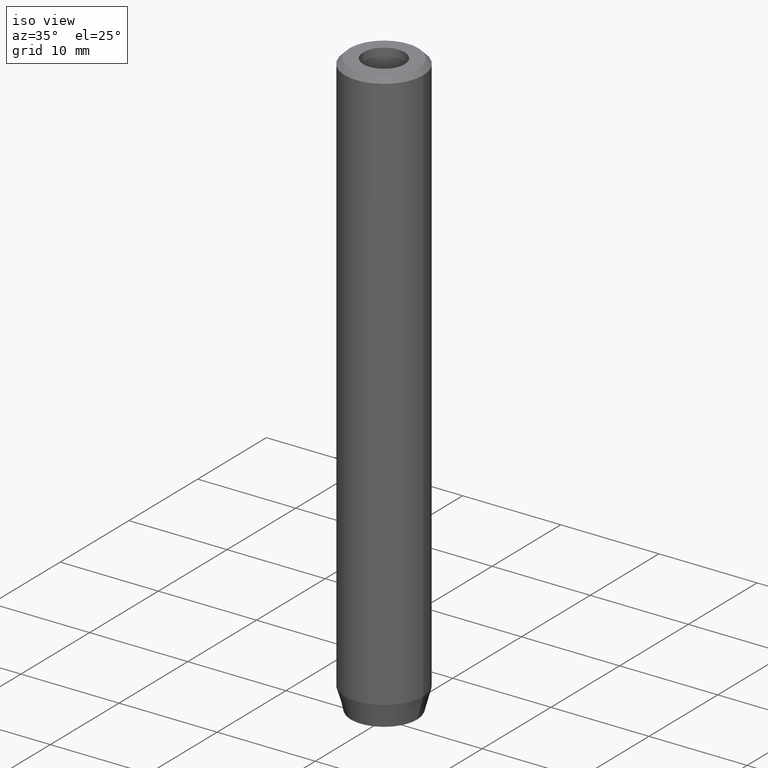
[diagram: clean part render]
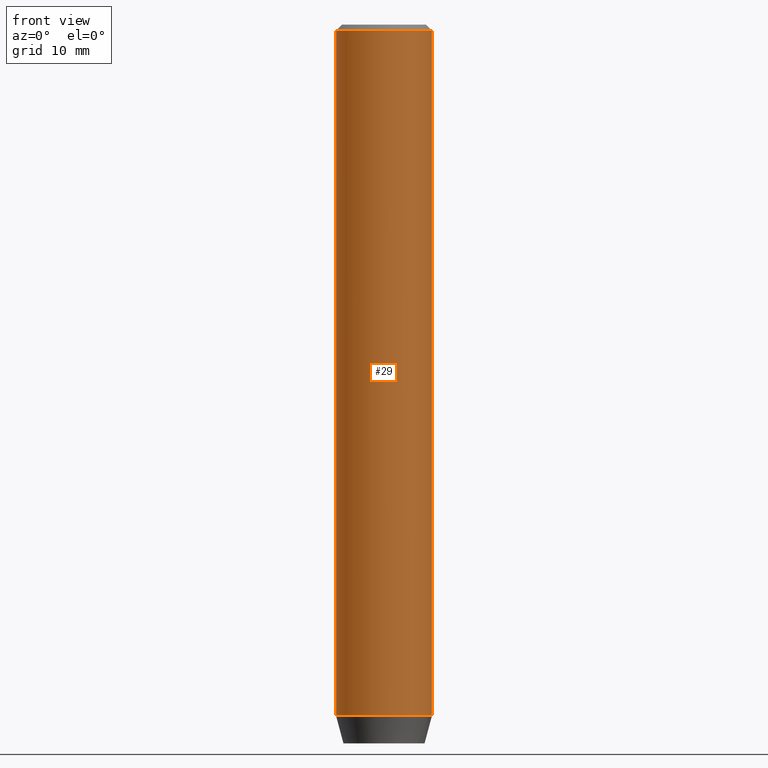
[diagram: tour spotlight — one face highlighted and labeled with its STEP entity id]
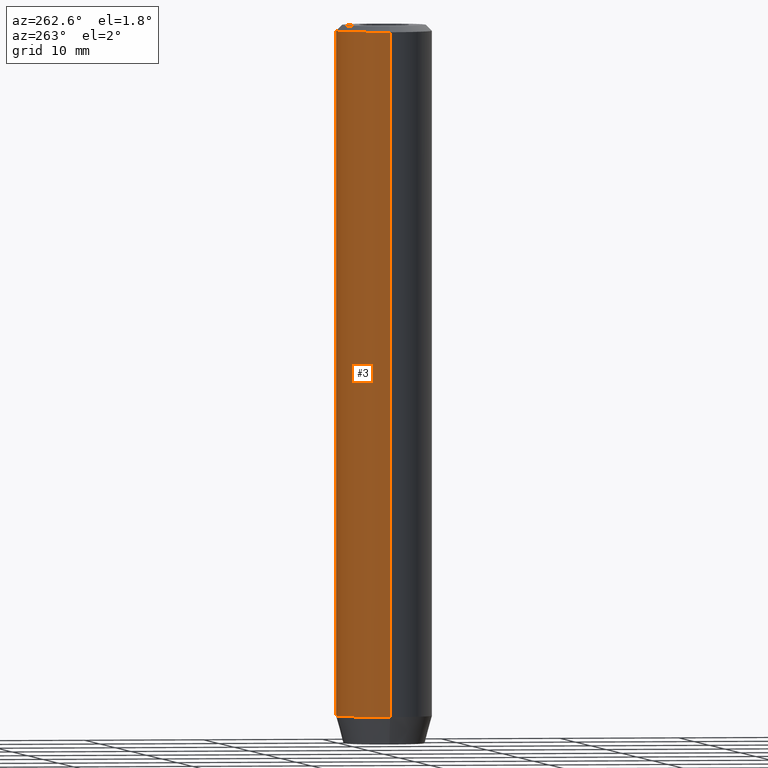
[diagram: tour spotlight — one face highlighted and labeled with its STEP entity id]
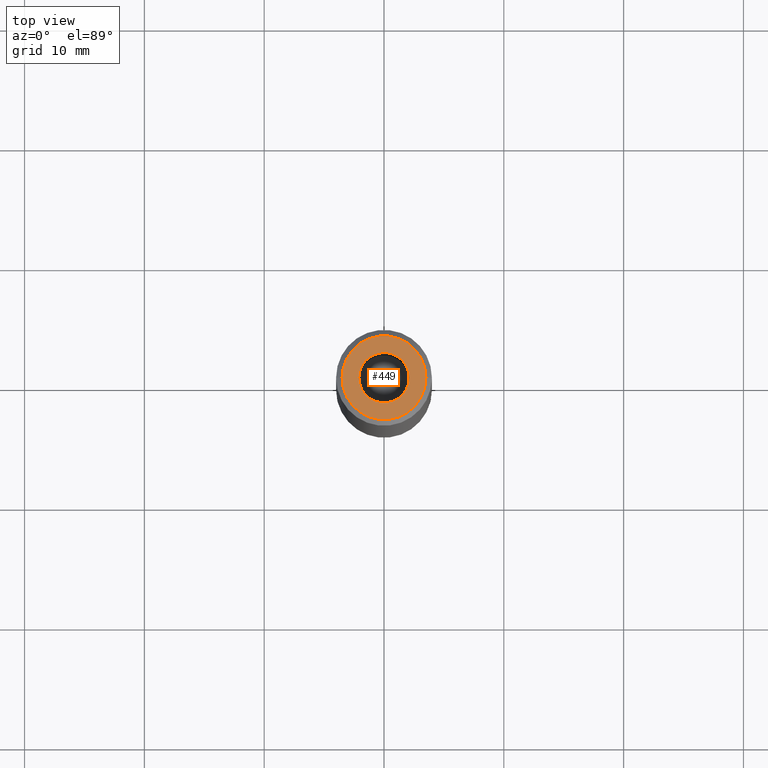
[diagram: tour spotlight — one face highlighted and labeled with its STEP entity id]
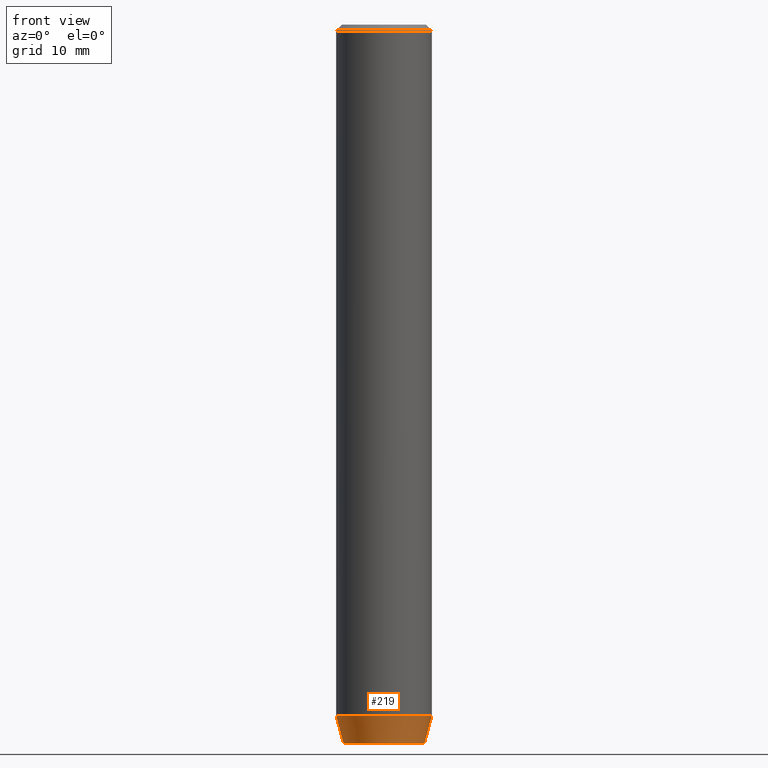
[diagram: tour spotlight — one face highlighted and labeled with its STEP entity id]
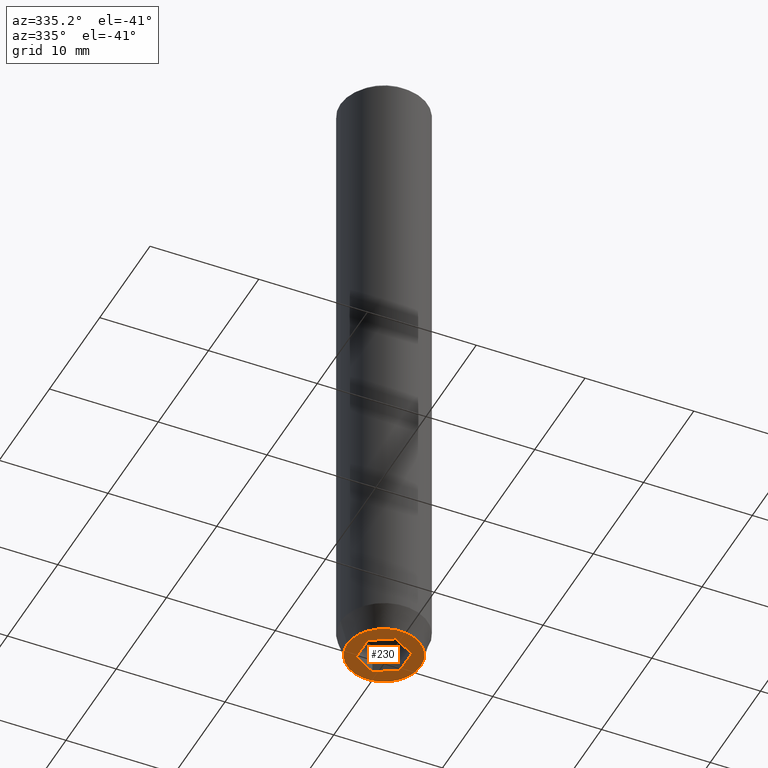
[diagram: tour spotlight — one face highlighted and labeled with its STEP entity id]
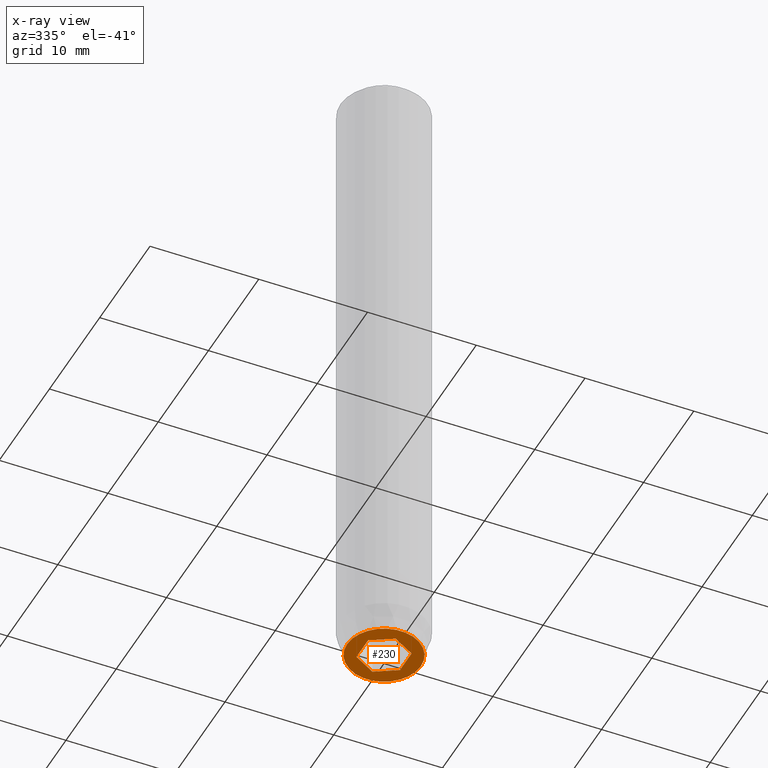
[diagram: x-ray of the same camera — body ghosted, this tour face saturated]
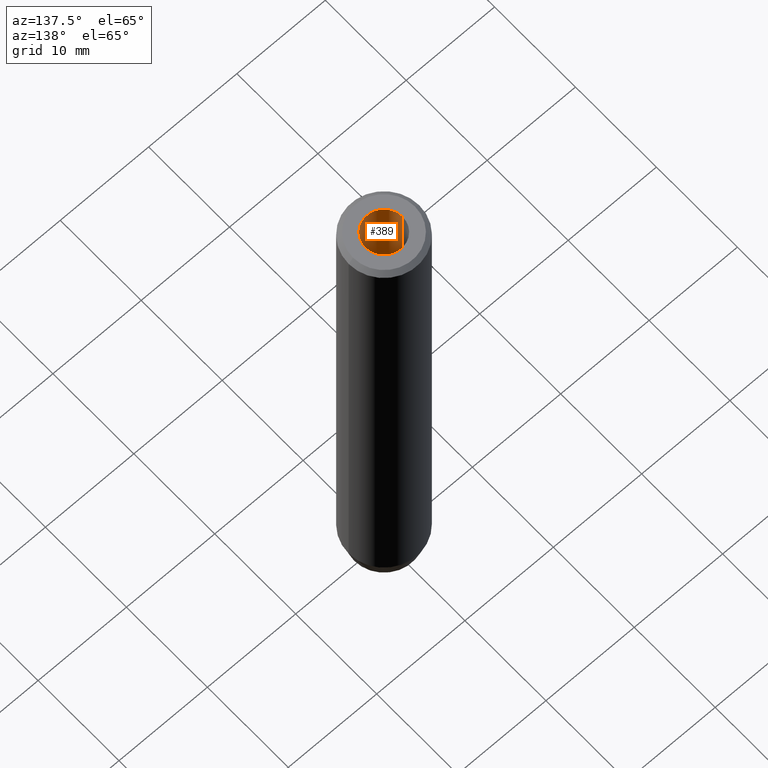
[diagram: tour spotlight — one face highlighted and labeled with its STEP entity id]
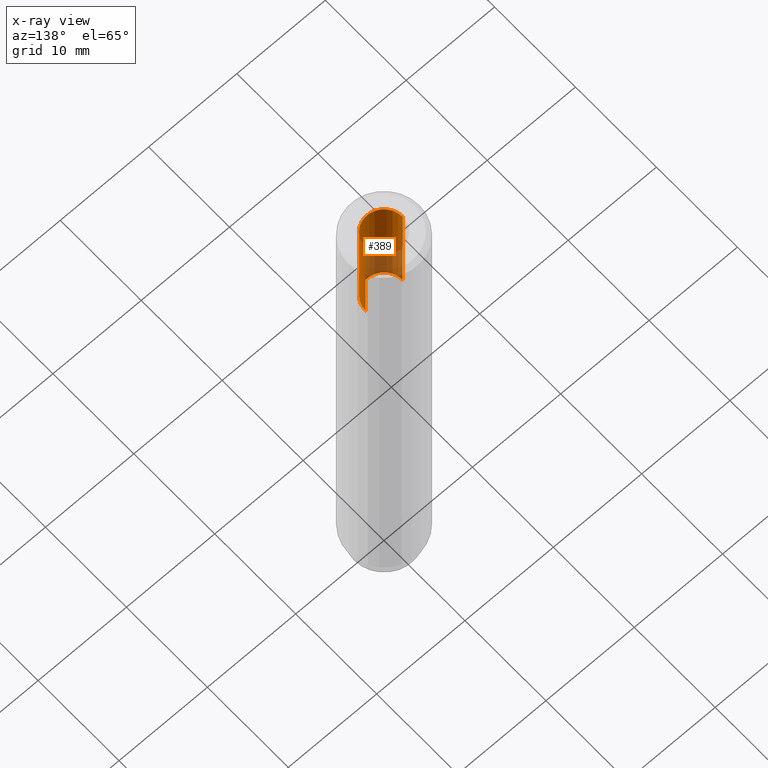
[diagram: x-ray of the same camera — body ghosted, this tour face saturated]
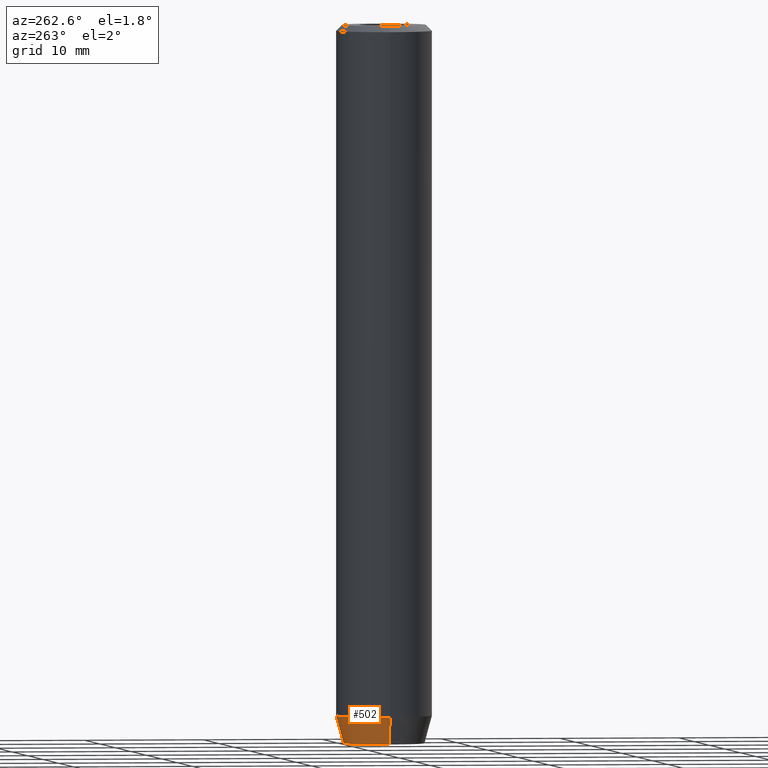
[diagram: tour spotlight — one face highlighted and labeled with its STEP entity id]
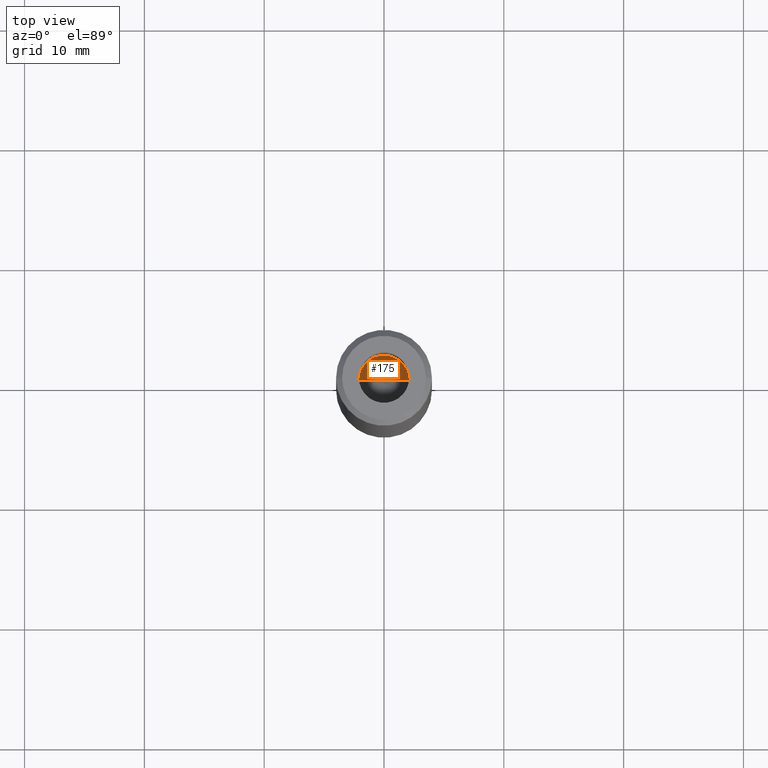
[diagram: tour spotlight — one face highlighted and labeled with its STEP entity id]
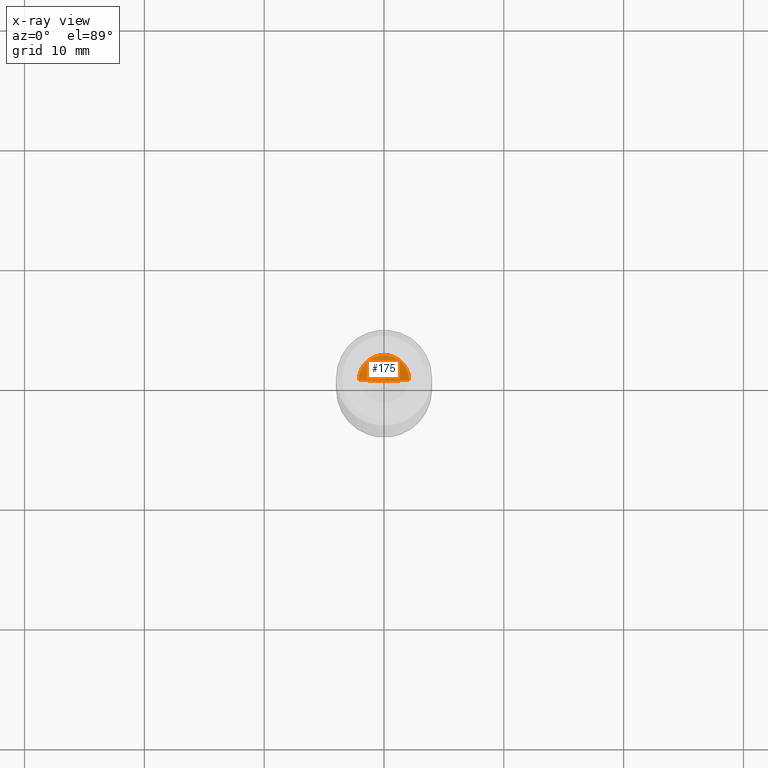
[diagram: x-ray of the same camera — body ghosted, this tour face saturated]
A machine part: a face-by-face anatomy tour. The part has 19 B-rep faces; the first image is the clean iso view, then the 8 largest visible faces are spotlighted one at a time (largest first), each with its STEP entity span.

Face 1 — front view, entity #29. In plain terms, the highlighted cylindrical surface (partial cylindrical patch) has radius 4 mm, axis along (-0, -0, 1).
Definition (entity closure, byte-faithful):
#28 = DIRECTION ( 'NONE',  ( -0.000000000000000000, -0.000000000000000000, 1.000000000000000000 ) ) ;
#29 = ADVANCED_FACE ( 'NONE', ( #451 ), #147, .T. ) ;
#43 = DIRECTION ( 'NONE',  ( -0.000000000000000000, -0.000000000000000000, 1.000000000000000000 ) ) ;
#48 = DIRECTION ( 'NONE',  ( 1.000000000000000000, 0.000000000000000000, 0.000000000000000000 ) ) ;
#118 = EDGE_CURVE ( 'NONE', #471, #182, #268, .T. ) ;
#132 = ORIENTED_EDGE ( 'NONE', *, *, #344, .T. ) ;
#141 = LINE ( 'NONE', #275, #455 ) ;
#147 = CYLINDRICAL_SURFACE ( 'NONE', #386, 4.000000000000000000 ) ;
#150 = CIRCLE ( 'NONE', #206, 4.000000000000000000 ) ;
#182 = VERTEX_POINT ( 'NONE', #469 ) ;
#206 = AXIS2_PLACEMENT_3D ( 'NONE', #519, #28, #257 ) ;
#218 = EDGE_CURVE ( 'NONE', #385, #471, #150, .T. ) ;
#227 = DIRECTION ( 'NONE',  ( -0.000000000000000000, -0.000000000000000000, 1.000000000000000000 ) ) ;
#247 = ORIENTED_EDGE ( 'NONE', *, *, #490, .F. ) ;
#257 = DIRECTION ( 'NONE',  ( 1.000000000000000000, 0.000000000000000000, 0.000000000000000000 ) ) ;
#258 = ORIENTED_EDGE ( 'NONE', *, *, #218, .T. ) ;
#263 = CARTESIAN_POINT ( 'NONE',  ( 0.000000000000000000, 0.000000000000000000, -0.4999999999999970024 ) ) ;
#266 = CARTESIAN_POINT ( 'NONE',  ( -4.000000000000000000, 4.898587196589412829E-16, -0.4999999999999970024 ) ) ;
#268 = LINE ( 'NONE', #315, #574 ) ;
#275 = CARTESIAN_POINT ( 'NONE',  ( -4.000000000000000000, 4.898587196589412829E-16, 0.000000000000000000 ) ) ;
#315 = CARTESIAN_POINT ( 'NONE',  ( 4.000000000000000000, 0.000000000000000000, 0.000000000000000000 ) ) ;
#333 = EDGE_LOOP ( 'NONE', ( #247, #258, #422, #132 ) ) ;
#335 = CIRCLE ( 'NONE', #412, 4.000000000000000000 ) ;
#342 = DIRECTION ( 'NONE',  ( 1.000000000000000000, 0.000000000000000000, 0.000000000000000000 ) ) ;
#344 = EDGE_CURVE ( 'NONE', #182, #464, #335, .T. ) ;
#385 = VERTEX_POINT ( 'NONE', #571 ) ;
#386 = AXIS2_PLACEMENT_3D ( 'NONE', #503, #442, #48 ) ;
#398 = CARTESIAN_POINT ( 'NONE',  ( 4.000000000000000000, 0.000000000000000000, -57.70000000000000284 ) ) ;
#412 = AXIS2_PLACEMENT_3D ( 'NONE', #263, #567, #342 ) ;
#422 = ORIENTED_EDGE ( 'NONE', *, *, #118, .T. ) ;
#442 = DIRECTION ( 'NONE',  ( -0.000000000000000000, -0.000000000000000000, 1.000000000000000000 ) ) ;
#451 = FACE_OUTER_BOUND ( 'NONE', #333, .T. ) ;
#455 = VECTOR ( 'NONE', #227, 1000.000000000000000 ) ;
#464 = VERTEX_POINT ( 'NONE', #266 ) ;
#469 = CARTESIAN_POINT ( 'NONE',  ( 4.000000000000000000, 0.000000000000000000, -0.4999999999999970024 ) ) ;
#471 = VERTEX_POINT ( 'NONE', #398 ) ;
#490 = EDGE_CURVE ( 'NONE', #385, #464, #141, .T. ) ;
#503 = CARTESIAN_POINT ( 'NONE',  ( 0.000000000000000000, 0.000000000000000000, 0.000000000000000000 ) ) ;
#519 = CARTESIAN_POINT ( 'NONE',  ( 0.000000000000000000, 0.000000000000000000, -57.70000000000000284 ) ) ;
#567 = DIRECTION ( 'NONE',  ( 0.000000000000000000, 0.000000000000000000, -1.000000000000000000 ) ) ;
#571 = CARTESIAN_POINT ( 'NONE',  ( -4.000000000000000000, 4.898587196589412829E-16, -57.70000000000000284 ) ) ;
#574 = VECTOR ( 'NONE', #43, 1000.000000000000000 ) ;

Face 2 — auxiliary view, entity #3. In plain terms, the highlighted cylindrical surface (partial cylindrical patch) has radius 4 mm, axis along (-0, -0, 1).
Definition (entity closure, byte-faithful):
#3 = ADVANCED_FACE ( 'NONE', ( #320 ), #145, .T. ) ;
#43 = DIRECTION ( 'NONE',  ( -0.000000000000000000, -0.000000000000000000, 1.000000000000000000 ) ) ;
#55 = CARTESIAN_POINT ( 'NONE',  ( 0.000000000000000000, 0.000000000000000000, -0.4999999999999970024 ) ) ;
#71 = CARTESIAN_POINT ( 'NONE',  ( 0.000000000000000000, 0.000000000000000000, -57.70000000000000284 ) ) ;
#77 = DIRECTION ( 'NONE',  ( -0.000000000000000000, -0.000000000000000000, 1.000000000000000000 ) ) ;
#86 = EDGE_CURVE ( 'NONE', #464, #182, #161, .T. ) ;
#93 = DIRECTION ( 'NONE',  ( -0.000000000000000000, -0.000000000000000000, 1.000000000000000000 ) ) ;
#118 = EDGE_CURVE ( 'NONE', #471, #182, #268, .T. ) ;
#141 = LINE ( 'NONE', #275, #455 ) ;
#145 = CYLINDRICAL_SURFACE ( 'NONE', #351, 4.000000000000000000 ) ;
#161 = CIRCLE ( 'NONE', #221, 4.000000000000000000 ) ;
#173 = ORIENTED_EDGE ( 'NONE', *, *, #118, .F. ) ;
#176 = EDGE_LOOP ( 'NONE', ( #461, #379, #397, #173 ) ) ;
#182 = VERTEX_POINT ( 'NONE', #469 ) ;
#193 = DIRECTION ( 'NONE',  ( 1.000000000000000000, 0.000000000000000000, 0.000000000000000000 ) ) ;
#221 = AXIS2_PLACEMENT_3D ( 'NONE', #55, #238, #248 ) ;
#227 = DIRECTION ( 'NONE',  ( -0.000000000000000000, -0.000000000000000000, 1.000000000000000000 ) ) ;
#238 = DIRECTION ( 'NONE',  ( 0.000000000000000000, 0.000000000000000000, -1.000000000000000000 ) ) ;
#248 = DIRECTION ( 'NONE',  ( 1.000000000000000000, 0.000000000000000000, 0.000000000000000000 ) ) ;
#262 = CIRCLE ( 'NONE', #478, 4.000000000000000000 ) ;
#266 = CARTESIAN_POINT ( 'NONE',  ( -4.000000000000000000, 4.898587196589412829E-16, -0.4999999999999970024 ) ) ;
#268 = LINE ( 'NONE', #315, #574 ) ;
#275 = CARTESIAN_POINT ( 'NONE',  ( -4.000000000000000000, 4.898587196589412829E-16, 0.000000000000000000 ) ) ;
#291 = EDGE_CURVE ( 'NONE', #471, #385, #262, .T. ) ;
#315 = CARTESIAN_POINT ( 'NONE',  ( 4.000000000000000000, 0.000000000000000000, 0.000000000000000000 ) ) ;
#320 = FACE_OUTER_BOUND ( 'NONE', #176, .T. ) ;
#351 = AXIS2_PLACEMENT_3D ( 'NONE', #364, #93, #193 ) ;
#364 = CARTESIAN_POINT ( 'NONE',  ( 0.000000000000000000, 0.000000000000000000, 0.000000000000000000 ) ) ;
#379 = ORIENTED_EDGE ( 'NONE', *, *, #490, .T. ) ;
#385 = VERTEX_POINT ( 'NONE', #571 ) ;
#391 = DIRECTION ( 'NONE',  ( 1.000000000000000000, 0.000000000000000000, 0.000000000000000000 ) ) ;
#397 = ORIENTED_EDGE ( 'NONE', *, *, #86, .T. ) ;
#398 = CARTESIAN_POINT ( 'NONE',  ( 4.000000000000000000, 0.000000000000000000, -57.70000000000000284 ) ) ;
#455 = VECTOR ( 'NONE', #227, 1000.000000000000000 ) ;
#461 = ORIENTED_EDGE ( 'NONE', *, *, #291, .T. ) ;
#464 = VERTEX_POINT ( 'NONE', #266 ) ;
#469 = CARTESIAN_POINT ( 'NONE',  ( 4.000000000000000000, 0.000000000000000000, -0.4999999999999970024 ) ) ;
#471 = VERTEX_POINT ( 'NONE', #398 ) ;
#478 = AXIS2_PLACEMENT_3D ( 'NONE', #71, #77, #391 ) ;
#490 = EDGE_CURVE ( 'NONE', #385, #464, #141, .T. ) ;
#571 = CARTESIAN_POINT ( 'NONE',  ( -4.000000000000000000, 4.898587196589412829E-16, -57.70000000000000284 ) ) ;
#574 = VECTOR ( 'NONE', #43, 1000.000000000000000 ) ;

Face 3 — top view, entity #449. In plain terms, the highlighted planar face has unit normal (0, -0, 1).
Definition (entity closure, byte-faithful):
#22 = CIRCLE ( 'NONE', #309, 3.500000000000003109 ) ;
#25 = VERTEX_POINT ( 'NONE', #553 ) ;
#34 = CARTESIAN_POINT ( 'NONE',  ( 0.000000000000000000, 0.000000000000000000, 0.000000000000000000 ) ) ;
#36 = CARTESIAN_POINT ( 'NONE',  ( -2.099999999999998757, 2.571758278209439985E-16, -1.990051048614449116E-16 ) ) ;
#37 = ORIENTED_EDGE ( 'NONE', *, *, #158, .F. ) ;
#39 = AXIS2_PLACEMENT_3D ( 'NONE', #246, #457, #293 ) ;
#45 = CARTESIAN_POINT ( 'NONE',  ( -3.500000000000003109, 0.000000000000000000, 0.000000000000000000 ) ) ;
#61 = VERTEX_POINT ( 'NONE', #45 ) ;
#79 = CIRCLE ( 'NONE', #39, 2.099999999999998757 ) ;
#80 = VERTEX_POINT ( 'NONE', #239 ) ;
#99 = CIRCLE ( 'NONE', #367, 2.099999999999998757 ) ;
#127 = EDGE_CURVE ( 'NONE', #80, #61, #489, .T. ) ;
#129 = PLANE ( 'NONE',  #264 ) ;
#144 = FACE_OUTER_BOUND ( 'NONE', #432, .T. ) ;
#158 = EDGE_CURVE ( 'NONE', #25, #492, #99, .T. ) ;
#160 = EDGE_LOOP ( 'NONE', ( #37, #350 ) ) ;
#168 = ORIENTED_EDGE ( 'NONE', *, *, #127, .T. ) ;
#174 = DIRECTION ( 'NONE',  ( 1.000000000000000000, 0.000000000000000000, 0.000000000000000000 ) ) ;
#186 = CARTESIAN_POINT ( 'NONE',  ( 0.000000000000000000, 0.000000000000000000, 0.000000000000000000 ) ) ;
#217 = DIRECTION ( 'NONE',  ( 1.000000000000000000, 0.000000000000000000, 0.000000000000000000 ) ) ;
#239 = CARTESIAN_POINT ( 'NONE',  ( 3.500000000000003109, 4.592425496802575944E-16, 0.000000000000000000 ) ) ;
#246 = CARTESIAN_POINT ( 'NONE',  ( 0.000000000000000000, 0.000000000000000000, -1.990051048614449116E-16 ) ) ;
#264 = AXIS2_PLACEMENT_3D ( 'NONE', #310, #583, #545 ) ;
#293 = DIRECTION ( 'NONE',  ( 1.000000000000000000, 0.000000000000000000, 0.000000000000000000 ) ) ;
#309 = AXIS2_PLACEMENT_3D ( 'NONE', #34, #475, #217 ) ;
#310 = CARTESIAN_POINT ( 'NONE',  ( 0.000000000000000000, 0.000000000000000000, 0.000000000000000000 ) ) ;
#326 = EDGE_CURVE ( 'NONE', #61, #80, #22, .T. ) ;
#350 = ORIENTED_EDGE ( 'NONE', *, *, #555, .F. ) ;
#355 = CARTESIAN_POINT ( 'NONE',  ( 0.000000000000000000, 0.000000000000000000, -1.990051048614449116E-16 ) ) ;
#367 = AXIS2_PLACEMENT_3D ( 'NONE', #355, #544, #446 ) ;
#432 = EDGE_LOOP ( 'NONE', ( #439, #168 ) ) ;
#434 = AXIS2_PLACEMENT_3D ( 'NONE', #186, #578, #174 ) ;
#439 = ORIENTED_EDGE ( 'NONE', *, *, #326, .T. ) ;
#440 = FACE_BOUND ( 'NONE', #160, .T. ) ;
#446 = DIRECTION ( 'NONE',  ( 1.000000000000000000, 0.000000000000000000, 0.000000000000000000 ) ) ;
#449 = ADVANCED_FACE ( 'NONE', ( #440, #144 ), #129, .T. ) ;
#457 = DIRECTION ( 'NONE',  ( -0.000000000000000000, -0.000000000000000000, 1.000000000000000000 ) ) ;
#475 = DIRECTION ( 'NONE',  ( -0.000000000000000000, -0.000000000000000000, 1.000000000000000000 ) ) ;
#489 = CIRCLE ( 'NONE', #434, 3.500000000000003109 ) ;
#492 = VERTEX_POINT ( 'NONE', #36 ) ;
#544 = DIRECTION ( 'NONE',  ( -0.000000000000000000, -0.000000000000000000, 1.000000000000000000 ) ) ;
#545 = DIRECTION ( 'NONE',  ( 1.000000000000000000, 0.000000000000000000, 0.000000000000000000 ) ) ;
#553 = CARTESIAN_POINT ( 'NONE',  ( 2.099999999999998757, 0.000000000000000000, -1.990051048614449116E-16 ) ) ;
#555 = EDGE_CURVE ( 'NONE', #492, #25, #79, .T. ) ;
#578 = DIRECTION ( 'NONE',  ( -0.000000000000000000, -0.000000000000000000, 1.000000000000000000 ) ) ;
#583 = DIRECTION ( 'NONE',  ( 0.000000000000000000, -0.000000000000000000, 1.000000000000000000 ) ) ;

Face 4 — front view, entity #219. In plain terms, the highlighted conical surface has half-angle 15 deg.
Definition (entity closure, byte-faithful):
#9 = EDGE_CURVE ( 'NONE', #119, #16, #488, .T. ) ;
#16 = VERTEX_POINT ( 'NONE', #87 ) ;
#19 = DIRECTION ( 'NONE',  ( -0.000000000000000000, -0.000000000000000000, 1.000000000000000000 ) ) ;
#24 = CARTESIAN_POINT ( 'NONE',  ( 0.000000000000000000, 0.000000000000000000, -57.70000000000000284 ) ) ;
#28 = DIRECTION ( 'NONE',  ( -0.000000000000000000, -0.000000000000000000, 1.000000000000000000 ) ) ;
#33 = VECTOR ( 'NONE', #514, 1000.000000000000114 ) ;
#69 = EDGE_CURVE ( 'NONE', #119, #385, #159, .T. ) ;
#87 = CARTESIAN_POINT ( 'NONE',  ( 3.383716857408417766, 0.000000000000000000, -60.00000000000000000 ) ) ;
#97 = AXIS2_PLACEMENT_3D ( 'NONE', #399, #546, #405 ) ;
#105 = CARTESIAN_POINT ( 'NONE',  ( -4.000000000000000000, 4.898587196589412829E-16, -57.70000000000000284 ) ) ;
#115 = CARTESIAN_POINT ( 'NONE',  ( 4.000000000000000000, 0.000000000000000000, -57.70000000000000284 ) ) ;
#119 = VERTEX_POINT ( 'NONE', #272 ) ;
#123 = CONICAL_SURFACE ( 'NONE', #444, 4.000000000000000000, 0.2617993877991497964 ) ;
#150 = CIRCLE ( 'NONE', #206, 4.000000000000000000 ) ;
#155 = FACE_OUTER_BOUND ( 'NONE', #231, .T. ) ;
#159 = LINE ( 'NONE', #105, #33 ) ;
#188 = EDGE_CURVE ( 'NONE', #16, #471, #211, .T. ) ;
#206 = AXIS2_PLACEMENT_3D ( 'NONE', #519, #28, #257 ) ;
#211 = LINE ( 'NONE', #115, #252 ) ;
#218 = EDGE_CURVE ( 'NONE', #385, #471, #150, .T. ) ;
#219 = ADVANCED_FACE ( 'NONE', ( #155 ), #123, .T. ) ;
#231 = EDGE_LOOP ( 'NONE', ( #297, #376, #563, #358 ) ) ;
#252 = VECTOR ( 'NONE', #428, 1000.000000000000114 ) ;
#257 = DIRECTION ( 'NONE',  ( 1.000000000000000000, 0.000000000000000000, 0.000000000000000000 ) ) ;
#272 = CARTESIAN_POINT ( 'NONE',  ( -3.383716857408417766, 4.521222607617785469E-16, -60.00000000000000000 ) ) ;
#297 = ORIENTED_EDGE ( 'NONE', *, *, #69, .F. ) ;
#331 = DIRECTION ( 'NONE',  ( 1.000000000000000000, 0.000000000000000000, 0.000000000000000000 ) ) ;
#358 = ORIENTED_EDGE ( 'NONE', *, *, #218, .F. ) ;
#376 = ORIENTED_EDGE ( 'NONE', *, *, #9, .T. ) ;
#385 = VERTEX_POINT ( 'NONE', #571 ) ;
#398 = CARTESIAN_POINT ( 'NONE',  ( 4.000000000000000000, 0.000000000000000000, -57.70000000000000284 ) ) ;
#399 = CARTESIAN_POINT ( 'NONE',  ( 0.000000000000000000, 0.000000000000000000, -60.00000000000000000 ) ) ;
#405 = DIRECTION ( 'NONE',  ( 1.000000000000000000, 0.000000000000000000, 0.000000000000000000 ) ) ;
#428 = DIRECTION ( 'NONE',  ( 0.2588190451025210725, 0.000000000000000000, 0.9659258262890680902 ) ) ;
#444 = AXIS2_PLACEMENT_3D ( 'NONE', #24, #19, #331 ) ;
#471 = VERTEX_POINT ( 'NONE', #398 ) ;
#488 = CIRCLE ( 'NONE', #97, 3.383716857408417766 ) ;
#514 = DIRECTION ( 'NONE',  ( -0.2588190451025210725, 3.169619151431769255E-17, 0.9659258262890680902 ) ) ;
#519 = CARTESIAN_POINT ( 'NONE',  ( 0.000000000000000000, 0.000000000000000000, -57.70000000000000284 ) ) ;
#546 = DIRECTION ( 'NONE',  ( -0.000000000000000000, -0.000000000000000000, 1.000000000000000000 ) ) ;
#563 = ORIENTED_EDGE ( 'NONE', *, *, #188, .T. ) ;
#571 = CARTESIAN_POINT ( 'NONE',  ( -4.000000000000000000, 4.898587196589412829E-16, -57.70000000000000284 ) ) ;

Face 5 — auxiliary view, entity #230. An x-ray twin of the same camera follows (body ghosted, this face saturated) — the face is partly hidden behind the body. In plain terms, the highlighted planar face has unit normal (0, 0, -1).
Definition (entity closure, byte-faithful):
#9 = EDGE_CURVE ( 'NONE', #119, #16, #488, .T. ) ;
#14 = CARTESIAN_POINT ( 'NONE',  ( 2.168404344971008868E-16, -2.309401076758503812, -60.00000000000000000 ) ) ;
#16 = VERTEX_POINT ( 'NONE', #87 ) ;
#31 = ORIENTED_EDGE ( 'NONE', *, *, #537, .F. ) ;
#50 = EDGE_CURVE ( 'NONE', #269, #63, #316, .T. ) ;
#52 = VECTOR ( 'NONE', #485, 999.9999999999998863 ) ;
#62 = CARTESIAN_POINT ( 'NONE',  ( 0.000000000000000000, 0.000000000000000000, -60.00000000000000000 ) ) ;
#63 = VERTEX_POINT ( 'NONE', #508 ) ;
#65 = CARTESIAN_POINT ( 'NONE',  ( 0.000000000000000000, 3.383716857408417766, -60.00000000000000000 ) ) ;
#78 = VECTOR ( 'NONE', #298, 1000.000000000000000 ) ;
#82 = EDGE_CURVE ( 'NONE', #16, #119, #232, .T. ) ;
#87 = CARTESIAN_POINT ( 'NONE',  ( 3.383716857408417766, 0.000000000000000000, -60.00000000000000000 ) ) ;
#97 = AXIS2_PLACEMENT_3D ( 'NONE', #399, #546, #405 ) ;
#106 = FACE_OUTER_BOUND ( 'NONE', #363, .T. ) ;
#112 = DIRECTION ( 'NONE',  ( 1.000000000000000000, 0.000000000000000000, 0.000000000000000000 ) ) ;
#119 = VERTEX_POINT ( 'NONE', #272 ) ;
#120 = CARTESIAN_POINT ( 'NONE',  ( 1.000000000000000444, 1.732050807568877637, -60.00000000000000000 ) ) ;
#125 = CARTESIAN_POINT ( 'NONE',  ( -1.000000000000000222, -1.732050807568877637, -60.00000000000000000 ) ) ;
#139 = VERTEX_POINT ( 'NONE', #348 ) ;
#151 = DIRECTION ( 'NONE',  ( -0.8660254037844388186, -0.4999999999999996114, 0.000000000000000000 ) ) ;
#162 = ORIENTED_EDGE ( 'NONE', *, *, #340, .F. ) ;
#165 = EDGE_CURVE ( 'NONE', #322, #269, #396, .T. ) ;
#194 = CARTESIAN_POINT ( 'NONE',  ( 2.000000000000000888, -1.154700538379252572, -60.00000000000000000 ) ) ;
#202 = LINE ( 'NONE', #287, #582 ) ;
#207 = VECTOR ( 'NONE', #151, 1000.000000000000114 ) ;
#209 = LINE ( 'NONE', #125, #52 ) ;
#214 = VECTOR ( 'NONE', #551, 1000.000000000000000 ) ;
#224 = ORIENTED_EDGE ( 'NONE', *, *, #50, .F. ) ;
#225 = CARTESIAN_POINT ( 'NONE',  ( -1.999999999999998224, 1.126735949052866956E-15, -60.00000000000000000 ) ) ;
#230 = ADVANCED_FACE ( 'NONE', ( #473, #106 ), #421, .T. ) ;
#232 = CIRCLE ( 'NONE', #403, 3.383716857408417766 ) ;
#260 = ORIENTED_EDGE ( 'NONE', *, *, #356, .F. ) ;
#269 = VERTEX_POINT ( 'NONE', #375 ) ;
#272 = CARTESIAN_POINT ( 'NONE',  ( -3.383716857408417766, 4.521222607617785469E-16, -60.00000000000000000 ) ) ;
#274 = CARTESIAN_POINT ( 'NONE',  ( -1.000000000000000444, 1.732050807568877637, -60.00000000000000000 ) ) ;
#284 = CARTESIAN_POINT ( 'NONE',  ( 0.9999999999999997780, -1.732050807568878747, -60.00000000000000000 ) ) ;
#287 = CARTESIAN_POINT ( 'NONE',  ( 2.000000000000000888, 0.000000000000000000, -60.00000000000000000 ) ) ;
#289 = DIRECTION ( 'NONE',  ( -1.000000000000000000, 0.000000000000000000, -0.000000000000000000 ) ) ;
#298 = DIRECTION ( 'NONE',  ( 0.8660254037844385966, -0.5000000000000001110, 0.000000000000000000 ) ) ;
#313 = ORIENTED_EDGE ( 'NONE', *, *, #165, .F. ) ;
#316 = LINE ( 'NONE', #274, #214 ) ;
#322 = VERTEX_POINT ( 'NONE', #534 ) ;
#339 = ORIENTED_EDGE ( 'NONE', *, *, #9, .F. ) ;
#340 = EDGE_CURVE ( 'NONE', #560, #322, #209, .T. ) ;
#348 = CARTESIAN_POINT ( 'NONE',  ( 2.000000000000000888, 1.154700538379251462, -60.00000000000000000 ) ) ;
#356 = EDGE_CURVE ( 'NONE', #63, #139, #527, .T. ) ;
#363 = EDGE_LOOP ( 'NONE', ( #476, #339 ) ) ;
#375 = CARTESIAN_POINT ( 'NONE',  ( -1.999999999999997780, 1.154700538379253238, -60.00000000000000000 ) ) ;
#396 = LINE ( 'NONE', #225, #521 ) ;
#399 = CARTESIAN_POINT ( 'NONE',  ( 0.000000000000000000, 0.000000000000000000, -60.00000000000000000 ) ) ;
#403 = AXIS2_PLACEMENT_3D ( 'NONE', #62, #459, #112 ) ;
#405 = DIRECTION ( 'NONE',  ( 1.000000000000000000, 0.000000000000000000, 0.000000000000000000 ) ) ;
#408 = ORIENTED_EDGE ( 'NONE', *, *, #524, .F. ) ;
#418 = DIRECTION ( 'NONE',  ( 0.000000000000000000, -1.000000000000000000, 0.000000000000000000 ) ) ;
#421 = PLANE ( 'NONE',  #467 ) ;
#426 = DIRECTION ( 'NONE',  ( 0.000000000000000000, 0.000000000000000000, -1.000000000000000000 ) ) ;
#459 = DIRECTION ( 'NONE',  ( -0.000000000000000000, -0.000000000000000000, 1.000000000000000000 ) ) ;
#467 = AXIS2_PLACEMENT_3D ( 'NONE', #65, #426, #289 ) ;
#473 = FACE_BOUND ( 'NONE', #566, .T. ) ;
#476 = ORIENTED_EDGE ( 'NONE', *, *, #82, .F. ) ;
#485 = DIRECTION ( 'NONE',  ( -0.8660254037844387076, 0.5000000000000001110, 0.000000000000000000 ) ) ;
#488 = CIRCLE ( 'NONE', #97, 3.383716857408417766 ) ;
#508 = CARTESIAN_POINT ( 'NONE',  ( 0.000000000000000000, 2.309401076758503812, -60.00000000000000000 ) ) ;
#521 = VECTOR ( 'NONE', #587, 1000.000000000000000 ) ;
#524 = EDGE_CURVE ( 'NONE', #139, #526, #202, .T. ) ;
#526 = VERTEX_POINT ( 'NONE', #194 ) ;
#527 = LINE ( 'NONE', #120, #78 ) ;
#534 = CARTESIAN_POINT ( 'NONE',  ( -1.999999999999998668, -1.154700538379252572, -60.00000000000000000 ) ) ;
#537 = EDGE_CURVE ( 'NONE', #526, #560, #561, .T. ) ;
#546 = DIRECTION ( 'NONE',  ( -0.000000000000000000, -0.000000000000000000, 1.000000000000000000 ) ) ;
#551 = DIRECTION ( 'NONE',  ( 0.8660254037844385966, 0.5000000000000001110, 0.000000000000000000 ) ) ;
#560 = VERTEX_POINT ( 'NONE', #14 ) ;
#561 = LINE ( 'NONE', #284, #207 ) ;
#566 = EDGE_LOOP ( 'NONE', ( #224, #313, #162, #31, #408, #260 ) ) ;
#582 = VECTOR ( 'NONE', #418, 1000.000000000000000 ) ;
#587 = DIRECTION ( 'NONE',  ( 5.633679745264339711E-16, 1.000000000000000000, 0.000000000000000000 ) ) ;

Face 6 — auxiliary view, entity #389. An x-ray twin of the same camera follows (body ghosted, this face saturated) — the face is partly hidden behind the body. In plain terms, the highlighted cylindrical surface (edge-blend (fillet) strip) has radius 2.1 mm, axis along (-0, -0, 1).
Definition (entity closure, byte-faithful):
#23 = EDGE_CURVE ( 'NONE', #383, #32, #179, .T. ) ;
#25 = VERTEX_POINT ( 'NONE', #553 ) ;
#32 = VERTEX_POINT ( 'NONE', #38 ) ;
#36 = CARTESIAN_POINT ( 'NONE',  ( -2.099999999999998757, 2.571758278209439985E-16, -1.990051048614449116E-16 ) ) ;
#38 = CARTESIAN_POINT ( 'NONE',  ( 2.099999999999996980, 0.000000000000000000, -12.50000000000000000 ) ) ;
#39 = AXIS2_PLACEMENT_3D ( 'NONE', #246, #457, #293 ) ;
#74 = DIRECTION ( 'NONE',  ( 1.000000000000000000, 0.000000000000000000, 0.000000000000000000 ) ) ;
#79 = CIRCLE ( 'NONE', #39, 2.099999999999998757 ) ;
#84 = DIRECTION ( 'NONE',  ( 1.000000000000000000, 0.000000000000000000, 0.000000000000000000 ) ) ;
#88 = VECTOR ( 'NONE', #539, 1000.000000000000000 ) ;
#136 = CARTESIAN_POINT ( 'NONE',  ( 0.000000000000000000, 0.000000000000000000, -12.50000000000000000 ) ) ;
#179 = CIRCLE ( 'NONE', #579, 2.099999999999996980 ) ;
#204 = ORIENTED_EDGE ( 'NONE', *, *, #23, .F. ) ;
#223 = CARTESIAN_POINT ( 'NONE',  ( 2.099999999999997868, 0.000000000000000000, 0.000000000000000000 ) ) ;
#246 = CARTESIAN_POINT ( 'NONE',  ( 0.000000000000000000, 0.000000000000000000, -1.990051048614449116E-16 ) ) ;
#255 = ORIENTED_EDGE ( 'NONE', *, *, #436, .F. ) ;
#293 = DIRECTION ( 'NONE',  ( 1.000000000000000000, 0.000000000000000000, 0.000000000000000000 ) ) ;
#295 = EDGE_LOOP ( 'NONE', ( #204, #472, #486, #255 ) ) ;
#301 = CYLINDRICAL_SURFACE ( 'NONE', #499, 2.099999999999997868 ) ;
#327 = CARTESIAN_POINT ( 'NONE',  ( -2.099999999999997868, 2.571758278209438999E-16, 0.000000000000000000 ) ) ;
#345 = FACE_OUTER_BOUND ( 'NONE', #295, .T. ) ;
#382 = CARTESIAN_POINT ( 'NONE',  ( -2.099999999999996980, 2.571758278209438013E-16, -12.50000000000000000 ) ) ;
#383 = VERTEX_POINT ( 'NONE', #382 ) ;
#389 = ADVANCED_FACE ( 'NONE', ( #345 ), #301, .F. ) ;
#430 = CARTESIAN_POINT ( 'NONE',  ( 0.000000000000000000, 0.000000000000000000, 0.000000000000000000 ) ) ;
#436 = EDGE_CURVE ( 'NONE', #32, #25, #549, .T. ) ;
#457 = DIRECTION ( 'NONE',  ( -0.000000000000000000, -0.000000000000000000, 1.000000000000000000 ) ) ;
#472 = ORIENTED_EDGE ( 'NONE', *, *, #535, .T. ) ;
#482 = DIRECTION ( 'NONE',  ( -0.000000000000000000, -0.000000000000000000, 1.000000000000000000 ) ) ;
#486 = ORIENTED_EDGE ( 'NONE', *, *, #555, .T. ) ;
#492 = VERTEX_POINT ( 'NONE', #36 ) ;
#496 = DIRECTION ( 'NONE',  ( -0.000000000000000000, -0.000000000000000000, 1.000000000000000000 ) ) ;
#499 = AXIS2_PLACEMENT_3D ( 'NONE', #430, #482, #74 ) ;
#507 = LINE ( 'NONE', #327, #513 ) ;
#513 = VECTOR ( 'NONE', #554, 1000.000000000000000 ) ;
#535 = EDGE_CURVE ( 'NONE', #383, #492, #507, .T. ) ;
#539 = DIRECTION ( 'NONE',  ( -0.000000000000000000, -0.000000000000000000, 1.000000000000000000 ) ) ;
#549 = LINE ( 'NONE', #223, #88 ) ;
#553 = CARTESIAN_POINT ( 'NONE',  ( 2.099999999999998757, 0.000000000000000000, -1.990051048614449116E-16 ) ) ;
#554 = DIRECTION ( 'NONE',  ( -0.000000000000000000, -0.000000000000000000, 1.000000000000000000 ) ) ;
#555 = EDGE_CURVE ( 'NONE', #492, #25, #79, .T. ) ;
#579 = AXIS2_PLACEMENT_3D ( 'NONE', #136, #496, #84 ) ;

Face 7 — auxiliary view, entity #502. In plain terms, the highlighted conical surface has half-angle 15 deg.
Definition (entity closure, byte-faithful):
#16 = VERTEX_POINT ( 'NONE', #87 ) ;
#20 = EDGE_LOOP ( 'NONE', ( #305, #250, #76, #85 ) ) ;
#33 = VECTOR ( 'NONE', #514, 1000.000000000000114 ) ;
#62 = CARTESIAN_POINT ( 'NONE',  ( 0.000000000000000000, 0.000000000000000000, -60.00000000000000000 ) ) ;
#69 = EDGE_CURVE ( 'NONE', #119, #385, #159, .T. ) ;
#71 = CARTESIAN_POINT ( 'NONE',  ( 0.000000000000000000, 0.000000000000000000, -57.70000000000000284 ) ) ;
#76 = ORIENTED_EDGE ( 'NONE', *, *, #291, .F. ) ;
#77 = DIRECTION ( 'NONE',  ( -0.000000000000000000, -0.000000000000000000, 1.000000000000000000 ) ) ;
#82 = EDGE_CURVE ( 'NONE', #16, #119, #232, .T. ) ;
#85 = ORIENTED_EDGE ( 'NONE', *, *, #188, .F. ) ;
#87 = CARTESIAN_POINT ( 'NONE',  ( 3.383716857408417766, 0.000000000000000000, -60.00000000000000000 ) ) ;
#105 = CARTESIAN_POINT ( 'NONE',  ( -4.000000000000000000, 4.898587196589412829E-16, -57.70000000000000284 ) ) ;
#112 = DIRECTION ( 'NONE',  ( 1.000000000000000000, 0.000000000000000000, 0.000000000000000000 ) ) ;
#115 = CARTESIAN_POINT ( 'NONE',  ( 4.000000000000000000, 0.000000000000000000, -57.70000000000000284 ) ) ;
#119 = VERTEX_POINT ( 'NONE', #272 ) ;
#143 = CONICAL_SURFACE ( 'NONE', #191, 4.000000000000000000, 0.2617993877991497964 ) ;
#159 = LINE ( 'NONE', #105, #33 ) ;
#188 = EDGE_CURVE ( 'NONE', #16, #471, #211, .T. ) ;
#191 = AXIS2_PLACEMENT_3D ( 'NONE', #317, #353, #357 ) ;
#211 = LINE ( 'NONE', #115, #252 ) ;
#232 = CIRCLE ( 'NONE', #403, 3.383716857408417766 ) ;
#250 = ORIENTED_EDGE ( 'NONE', *, *, #69, .T. ) ;
#252 = VECTOR ( 'NONE', #428, 1000.000000000000114 ) ;
#262 = CIRCLE ( 'NONE', #478, 4.000000000000000000 ) ;
#272 = CARTESIAN_POINT ( 'NONE',  ( -3.383716857408417766, 4.521222607617785469E-16, -60.00000000000000000 ) ) ;
#291 = EDGE_CURVE ( 'NONE', #471, #385, #262, .T. ) ;
#305 = ORIENTED_EDGE ( 'NONE', *, *, #82, .T. ) ;
#317 = CARTESIAN_POINT ( 'NONE',  ( 0.000000000000000000, 0.000000000000000000, -57.70000000000000284 ) ) ;
#353 = DIRECTION ( 'NONE',  ( -0.000000000000000000, -0.000000000000000000, 1.000000000000000000 ) ) ;
#357 = DIRECTION ( 'NONE',  ( 1.000000000000000000, 0.000000000000000000, 0.000000000000000000 ) ) ;
#385 = VERTEX_POINT ( 'NONE', #571 ) ;
#391 = DIRECTION ( 'NONE',  ( 1.000000000000000000, 0.000000000000000000, 0.000000000000000000 ) ) ;
#398 = CARTESIAN_POINT ( 'NONE',  ( 4.000000000000000000, 0.000000000000000000, -57.70000000000000284 ) ) ;
#400 = FACE_OUTER_BOUND ( 'NONE', #20, .T. ) ;
#403 = AXIS2_PLACEMENT_3D ( 'NONE', #62, #459, #112 ) ;
#428 = DIRECTION ( 'NONE',  ( 0.2588190451025210725, 0.000000000000000000, 0.9659258262890680902 ) ) ;
#459 = DIRECTION ( 'NONE',  ( -0.000000000000000000, -0.000000000000000000, 1.000000000000000000 ) ) ;
#471 = VERTEX_POINT ( 'NONE', #398 ) ;
#478 = AXIS2_PLACEMENT_3D ( 'NONE', #71, #77, #391 ) ;
#502 = ADVANCED_FACE ( 'NONE', ( #400 ), #143, .T. ) ;
#514 = DIRECTION ( 'NONE',  ( -0.2588190451025210725, 3.169619151431769255E-17, 0.9659258262890680902 ) ) ;
#571 = CARTESIAN_POINT ( 'NONE',  ( -4.000000000000000000, 4.898587196589412829E-16, -57.70000000000000284 ) ) ;

Face 8 — top view, entity #175. An x-ray twin of the same camera follows (body ghosted, this face saturated) — the face is partly hidden behind the body. In plain terms, the highlighted conical surface has half-angle 59 deg.
Definition (entity closure, byte-faithful):
#1 = CARTESIAN_POINT ( 'NONE',  ( -3.370670652075219192E-15, 0.000000000000000000, -13.76180729995787644 ) ) ;
#8 = LINE ( 'NONE', #192, #59 ) ;
#32 = VERTEX_POINT ( 'NONE', #38 ) ;
#38 = CARTESIAN_POINT ( 'NONE',  ( 2.099999999999996980, 0.000000000000000000, -12.50000000000000000 ) ) ;
#40 = VERTEX_POINT ( 'NONE', #1 ) ;
#42 = ORIENTED_EDGE ( 'NONE', *, *, #505, .T. ) ;
#54 = DIRECTION ( 'NONE',  ( -0.8571673007021116675, 1.049727191138617833E-16, 0.5150380749100552658 ) ) ;
#59 = VECTOR ( 'NONE', #392, 1000.000000000000000 ) ;
#72 = DIRECTION ( 'NONE',  ( -0.000000000000000000, -0.000000000000000000, 1.000000000000000000 ) ) ;
#90 = FACE_OUTER_BOUND ( 'NONE', #128, .T. ) ;
#128 = EDGE_LOOP ( 'NONE', ( #520, #42, #474 ) ) ;
#164 = DIRECTION ( 'NONE',  ( 1.000000000000000000, 0.000000000000000000, 0.000000000000000000 ) ) ;
#175 = ADVANCED_FACE ( 'NONE', ( #90 ), #512, .F. ) ;
#181 = AXIS2_PLACEMENT_3D ( 'NONE', #294, #72, #164 ) ;
#187 = CARTESIAN_POINT ( 'NONE',  ( 0.000000000000000000, 0.000000000000000000, -12.50000000000000000 ) ) ;
#192 = CARTESIAN_POINT ( 'NONE',  ( 2.099999999999996980, 0.000000000000000000, -12.50000000000000000 ) ) ;
#195 = LINE ( 'NONE', #510, #253 ) ;
#253 = VECTOR ( 'NONE', #54, 1000.000000000000000 ) ;
#279 = DIRECTION ( 'NONE',  ( 1.000000000000000000, 0.000000000000000000, 0.000000000000000000 ) ) ;
#294 = CARTESIAN_POINT ( 'NONE',  ( 0.000000000000000000, 0.000000000000000000, -12.50000000000000000 ) ) ;
#328 = AXIS2_PLACEMENT_3D ( 'NONE', #187, #500, #279 ) ;
#382 = CARTESIAN_POINT ( 'NONE',  ( -2.099999999999996980, 2.571758278209438013E-16, -12.50000000000000000 ) ) ;
#383 = VERTEX_POINT ( 'NONE', #382 ) ;
#392 = DIRECTION ( 'NONE',  ( 0.8571673007021116675, 0.000000000000000000, 0.5150380749100552658 ) ) ;
#431 = EDGE_CURVE ( 'NONE', #32, #383, #580, .T. ) ;
#474 = ORIENTED_EDGE ( 'NONE', *, *, #431, .T. ) ;
#500 = DIRECTION ( 'NONE',  ( -0.000000000000000000, -0.000000000000000000, 1.000000000000000000 ) ) ;
#505 = EDGE_CURVE ( 'NONE', #40, #32, #8, .T. ) ;
#510 = CARTESIAN_POINT ( 'NONE',  ( -2.099999999999996980, 2.571758278209438013E-16, -12.50000000000000000 ) ) ;
#512 = CONICAL_SURFACE ( 'NONE', #181, 2.099999999999996980, 1.029744258676653201 ) ;
#520 = ORIENTED_EDGE ( 'NONE', *, *, #550, .F. ) ;
#550 = EDGE_CURVE ( 'NONE', #40, #383, #195, .T. ) ;
#580 = CIRCLE ( 'NONE', #328, 2.099999999999996980 ) ;